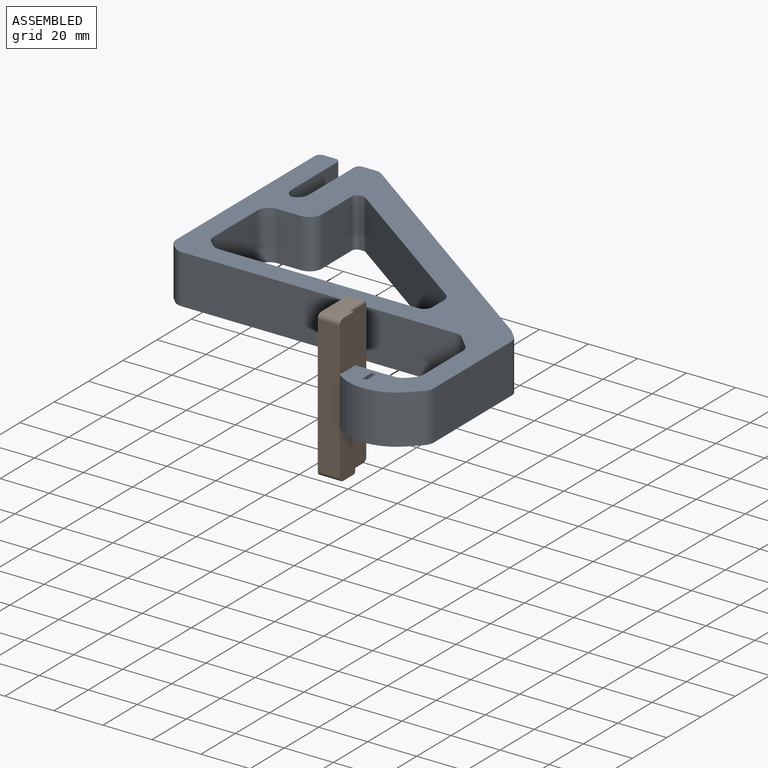
[diagram: assembled view]
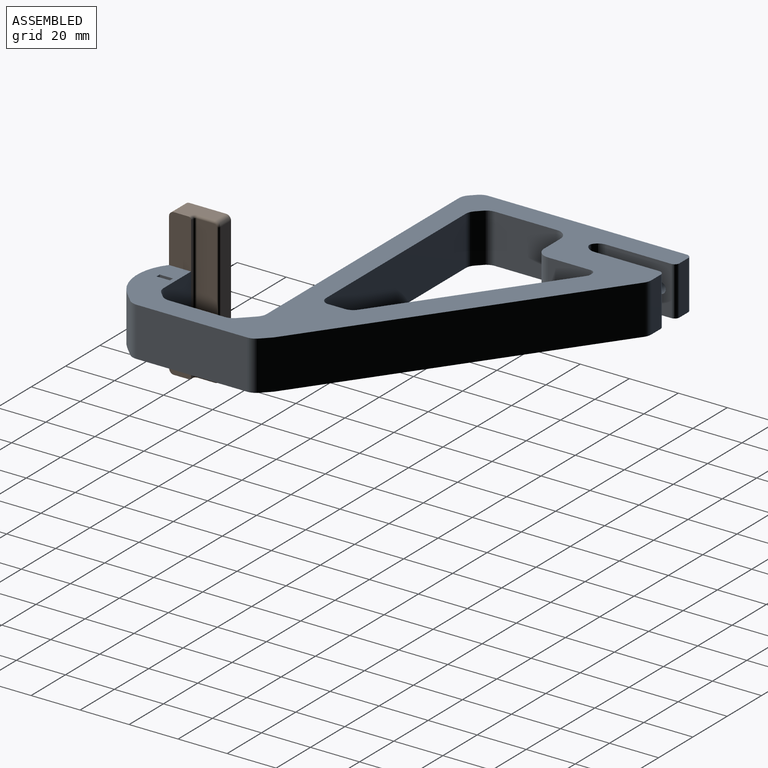
[diagram: assembled view, second angle]
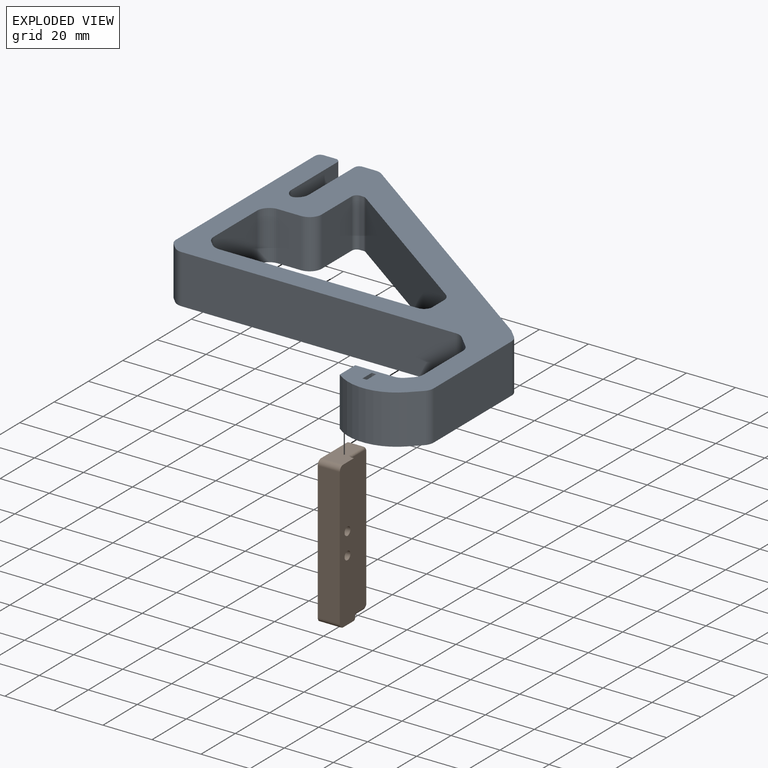
[diagram: exploded view]
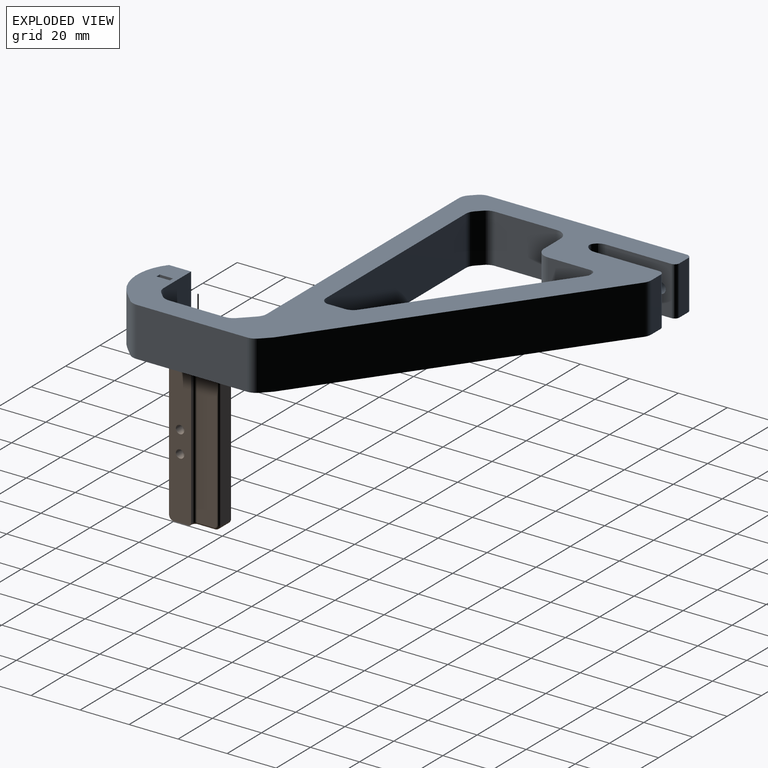
[diagram: exploded view, second angle]
ASSEMBLY  parts=2 mates=3
PART A: 69 faces, bbox 138x143.4x20 mm
  f0: cylinder r=5mm len=20mm, axis (0,0,1), area 157.1mm2, adj f1,f2,f3,f62
  f1: plane 143.36x138mm, normal (0,0,1), area 4828.8mm2, adj f0,f3,f4,f5,f6,f7,f8,f9
  f2: plane 143.36x138mm, normal (0,0,-1), area 4828.8mm2, adj f0,f3,f4,f5,f6,f7,f8,f9
  f3: plane 25.21x20mm, normal (1,0,0), area 504.1mm2, adj f0,f1,f2,f28
  f4: plane 20x5mm, normal (0,1,0), area 100mm2, adj f1,f2,f55,f56
  f5: plane 80.93x20mm, normal (-1,0,0), area 1492.5mm2, adj f1,f2,f29,f51,f53,f55
  f6: plane 111.86x20mm, normal (0,-1,0), area 2237.2mm2, adj f1,f2,f25,f30
  f7: plane 22.86x20mm, normal (-1,0,0), area 457.2mm2, adj f1,f2,f21,f26
  f8: plane 20x15.93mm, normal (0,1,0), area 318.6mm2, adj f1,f2,f9,f22
  f9: plane 20x9mm, normal (-1,0,0), area 161.8mm2, adj f1,f2,f8,f40,f41,f42
  f10: plane 45.27x20mm, normal (1,0,0), area 905.4mm2, adj f1,f2,f20,f23
  f11: plane 26.5x20mm, normal (1,0,0), area 498.2mm2, adj f1,f2,f31,f50,f52,f56
  f12: plane 81.3x20mm, normal (0,1,0), area 1625.9mm2, adj f1,f2,f19,f27
  f13: plane 20x2.07mm, normal (-0.71,-0.71,0), area 58.6mm2, adj f1,f2,f29,f30
  f14: plane 20x2.07mm, normal (0.71,0.71,0), area 58.6mm2, adj f1,f2,f27,f28
  f15: plane 20x5.07mm, normal (-0.71,-0.71,0), area 143.4mm2, adj f1,f2,f25,f26
  f16: plane 20x3.39mm, normal (0.71,0.71,0), area 95.9mm2, adj f1,f2,f23,f24
  f17: plane 20x2.07mm, normal (-0.71,0.71,0), area 58.6mm2, adj f1,f2,f21,f22
  f18: plane 20x4.07mm, normal (0.71,-0.71,0), area 115.1mm2, adj f1,f2,f20,f42
  f19: cylinder r=3.5mm len=20mm, axis (0,0,1), area 122.2mm2, adj f1,f2,f12,f61
  f20: cylinder r=5mm len=20mm, axis (0,0,1), area 78.5mm2, adj f1,f2,f10,f18
  f21: cylinder r=5mm len=20mm, axis (0,0,-1), area 78.5mm2, adj f1,f2,f7,f17
  f22: cylinder r=5mm len=20mm, axis (0,0,1), area 78.5mm2, adj f1,f2,f8,f17
  f23: cylinder r=5mm len=20mm, axis (0,0,-1), area 78.5mm2, adj f1,f2,f10,f16
  f24: cylinder r=5mm len=20mm, axis (0,0,1), area 21.8mm2, adj f1,f2,f16,f43
  f25: cylinder r=5mm len=20mm, axis (0,0,-1), area 78.5mm2, adj f1,f2,f6,f15
  f26: cylinder r=5mm len=20mm, axis (0,0,1), area 78.5mm2, adj f1,f2,f7,f15
  f27: cylinder r=5mm len=20mm, axis (0,0,-1), area 78.5mm2, adj f1,f2,f12,f14
  f28: cylinder r=5mm len=20mm, axis (0,0,1), area 78.5mm2, adj f1,f2,f3,f14
  f29: cylinder r=5mm len=20mm, axis (0,0,-1), area 78.5mm2, adj f1,f2,f5,f13
  f30: cylinder r=5mm len=20mm, axis (0,0,1), area 78.5mm2, adj f1,f2,f6,f13
  f31: cylinder r=5mm len=20mm, axis (0,0,1), area 100.2mm2, adj f1,f2,f11,f58
  f32: plane 20x1.8mm, normal (0,-1,0), area 36mm2, adj f1,f2,f33,f35
  f33: plane 20x5.4mm, normal (1,0,0), area 89.8mm2, adj f1,f2,f32,f34,f40,f41
  f34: plane 20x1.8mm, normal (0,1,0), area 36mm2, adj f1,f2,f33,f35
  f35: plane 20x5.4mm, normal (-1,0,0), area 89.8mm2, adj f1,f2,f32,f34,f36,f38
  f36: cylinder r=1.7mm len=5.95mm, axis (-1,0,0), area 63.6mm2, adj f35,f37
  f37: cone r=0mm half-angle=59deg, axis (-1,0,0), area 10.6mm2, adj f36
  f38: cylinder r=1.7mm len=5.95mm, axis (-1,0,0), area 63.6mm2, adj f35,f39
  f39: cone r=0mm half-angle=59deg, axis (-1,0,0), area 10.6mm2, adj f38
  f40: cylinder r=1.7mm len=8mm, axis (-1,0,0), area 85.5mm2, adj f9,f33
  f41: cylinder r=1.7mm len=8mm, axis (-1,0,0), area 85.5mm2, adj f9,f33
  f42: cylinder r=19.87mm len=26.46mm, axis (0,0,1), area 580.3mm2, adj f1,f2,f9,f18
  f43: plane 105.99x76.11mm, normal (0.58,0.81,0), area 2609.7mm2, adj f1,f2,f24,f59
  f44: plane 20x5.39mm, normal (0,1,0), area 107.8mm2, adj f1,f2,f54,f59
  f45: plane 26.37x20mm, normal (-1,0,0), area 495.5mm2, adj f1,f2,f47,f49,f54,f57
  f46: cone r=0mm half-angle=59deg, axis (-1,0,0), area 18.6mm2, adj f47
  f47: cylinder r=2.25mm len=9mm, axis (-1,0,0), area 127.2mm2, adj f45,f46
  f48: cone r=0mm half-angle=59deg, axis (-1,0,0), area 18.6mm2, adj f49
  f49: cylinder r=2.25mm len=9mm, axis (-1,0,0), area 127.2mm2, adj f45,f48
  f50: cylinder r=2.25mm len=6.77mm, axis (-1,0,0), area 95.7mm2, adj f11,f51
  f51: cone r=2.25mm half-angle=45deg, axis (-1,0,0), area 66.7mm2, adj f5,f50
  f52: cylinder r=2.25mm len=6.77mm, axis (-1,0,0), area 95.7mm2, adj f11,f53
  f53: cone r=2.25mm half-angle=45deg, axis (-1,0,0), area 66.7mm2, adj f5,f52
  f54: cylinder r=2mm len=20mm, axis (0,0,1), area 62.8mm2, adj f1,f2,f44,f45
  f55: cylinder r=2mm len=20mm, axis (0,0,-1), area 62.8mm2, adj f1,f2,f4,f5
  f56: cylinder r=2mm len=20mm, axis (0,0,-1), area 62.8mm2, adj f1,f2,f4,f11
  f57: cylinder r=5mm len=20mm, axis (0,0,-1), area 109.1mm2, adj f1,f2,f45,f58
  f58: cylinder r=2mm len=20mm, axis (0,0,-1), area 41.9mm2, adj f1,f2,f31,f57
  f59: cylinder r=5mm len=20mm, axis (0,0,-1), area 62.3mm2, adj f1,f2,f43,f44
  f60: plane 65.79x47.24mm, normal (-0.58,-0.81,0), area 1619.8mm2, adj f1,f2,f65,f68
  f61: plane 20x5.97mm, normal (-1,0,0), area 119.4mm2, adj f1,f2,f19,f65
  f62: plane 20x9.47mm, normal (0,-1,0), area 189.3mm2, adj f0,f1,f2,f66
  f63: plane 20x17.48mm, normal (1,0,0), area 349.5mm2, adj f1,f2,f66,f67
  f64: plane 20x1.31mm, normal (0,-1,0), area 26.2mm2, adj f1,f2,f67,f68
  f65: cylinder r=5mm len=20mm, axis (0,0,1), area 94.8mm2, adj f1,f2,f60,f61
  f66: cylinder r=5mm len=20mm, axis (0,0,1), area 157.1mm2, adj f1,f2,f62,f63
  f67: cylinder r=2mm len=20mm, axis (0,0,1), area 62.8mm2, adj f1,f2,f63,f64
  f68: cylinder r=2mm len=20mm, axis (0,0,1), area 24.9mm2, adj f1,f2,f60,f64
PART B: 28 faces, bbox 9x19.2x60.3 mm
  f0: plane 15x9mm, normal (0,0,1), area 108.9mm2, adj f3,f6,f14,f15,f17,f21,f22
  f1: plane 56x9mm, normal (0,-1,0), area 504mm2, adj f3,f6,f13,f15
  f2: plane 56x6mm, normal (0,1,0), area 336mm2, adj f6,f12,f14,f24
  f3: plane 60x9mm, normal (1,0,0), area 519.7mm2, adj f0,f1,f4,f7,f8,f10,f13,f15
  f4: plane 58x1mm, normal (0,1,0), area 58mm2, adj f3,f16,f17,f18
  f5: plane 58x8mm, normal (1,0,0), area 463.6mm2, adj f18,f22,f23,f24,f25,f26
  f6: plane 60x19mm, normal (-1,0,0), area 1073.8mm2, adj f0,f1,f2,f7,f12,f13,f14,f15
  f7: plane 15x9mm, normal (0,0,-1), area 108.9mm2, adj f3,f6,f12,f13,f16,f26,f27
  f8: cylinder r=1.7mm len=7.34mm, axis (-1,0,0), area 78.4mm2, adj f3,f9
  f9: cone r=1.7mm half-angle=45deg, axis (-1,0,0), area 31.5mm2, adj f8,f19
  f10: cylinder r=1.7mm len=7.34mm, axis (-1,0,0), area 78.4mm2, adj f3,f11
  f11: cone r=1.7mm half-angle=45deg, axis (-1,0,0), area 31.5mm2, adj f10,f20
  f12: cylinder r=2mm len=6mm, axis (-1,0,0), area 18.8mm2, adj f2,f6,f7,f25
  f13: cylinder r=2mm len=9mm, axis (1,0,0), area 28.3mm2, adj f1,f3,f6,f7
  f14: cylinder r=2mm len=6mm, axis (1,0,0), area 18.8mm2, adj f0,f2,f6,f23
  f15: cylinder r=2mm len=9mm, axis (-1,0,0), area 28.3mm2, adj f0,f1,f3,f6
  f16: cylinder r=1mm len=1mm, axis (-1,0,0), area 1.6mm2, adj f3,f4,f7,f27
  f17: cylinder r=1mm len=1mm, axis (1,0,0), area 1.6mm2, adj f0,f3,f4,f21
  f18: cylinder r=1mm len=58mm, axis (0,0,1), area 91.1mm2, adj f4,f5,f21,f27
  f19: cylinder r=3.16mm len=6.32mm, axis (-1,0,0), area 4mm2, adj f6,f9
  f20: cylinder r=3.16mm len=6.32mm, axis (-1,0,0), area 4mm2, adj f6,f11
  f21: torus R=2mm, axis (0,0,1), area 3.4mm2, adj f0,f17,f18,f22
  f22: cylinder r=1mm len=7mm, axis (0,-1,0), area 11mm2, adj f0,f5,f21,f23
  f23: torus R=1mm, axis (1,0,0), area 4mm2, adj f5,f14,f22,f24
  f24: cylinder r=1mm len=56mm, axis (0,0,-1), area 88mm2, adj f2,f5,f23,f25
  f25: torus R=1mm, axis (1,0,0), area 4mm2, adj f5,f12,f24,f26
  f26: cylinder r=1mm len=7mm, axis (0,1,0), area 11mm2, adj f5,f7,f25,f27
  f27: torus R=2mm, axis (0,0,1), area 3.4mm2, adj f7,f16,f18,f26
PLACE A t=(-60.76,60.94,-33.24)mm
PLACE B t=(45.24,-78.06,-53.24)mm
MATE cylindrical B.f10 <-> A.f38  axis (-1,0,0) through (41.57,-73.56,-27.74)mm
MATE cylindrical B.f8 <-> A.f36  axis (-1,0,0) through (37.9,-73.56,-18.74)mm
MATE planar B.f8 <-> A.f36  axis (1,0,0) through (45.24,-73.56,-18.74)mm
